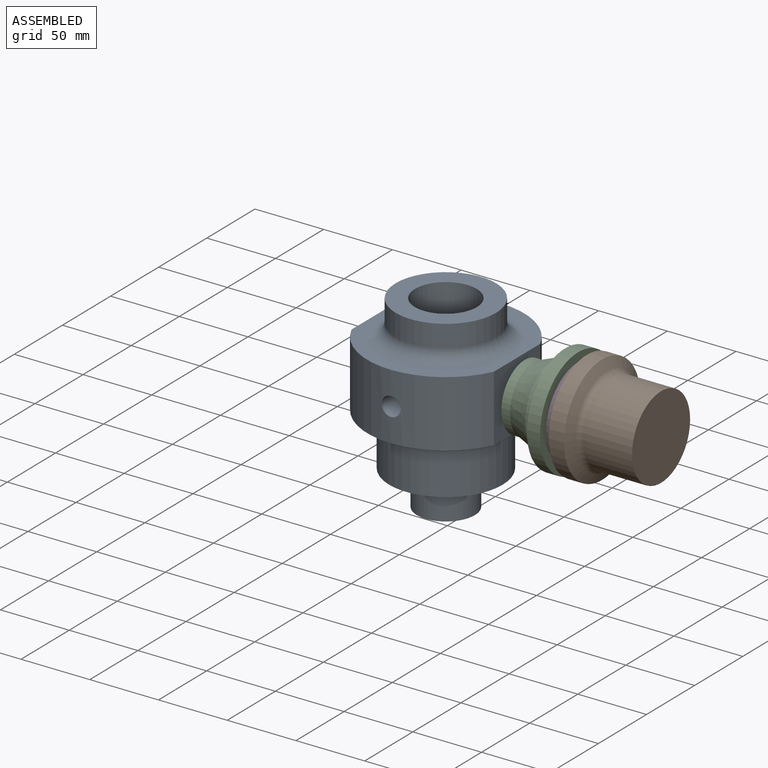
[diagram: assembled view]
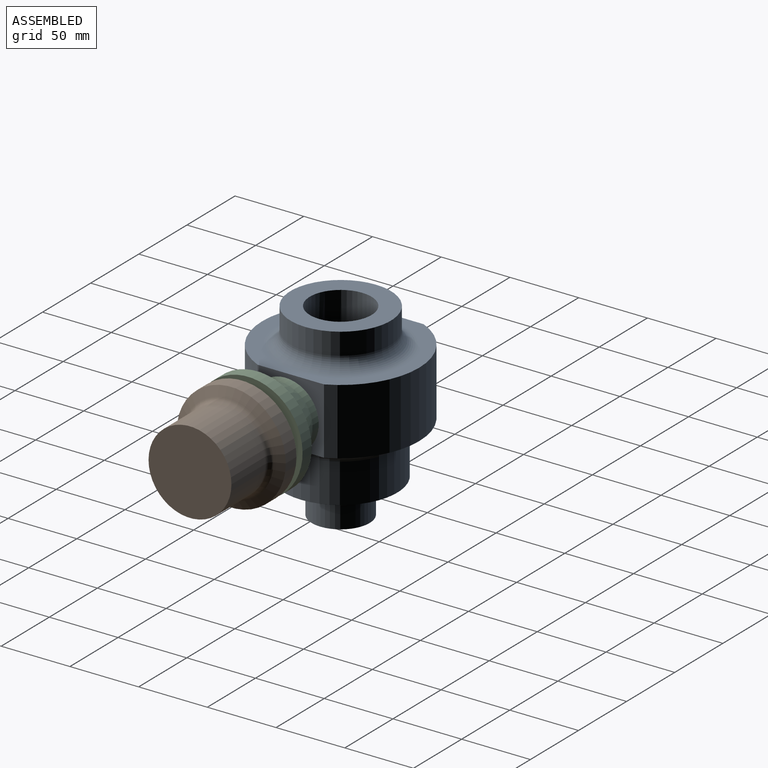
[diagram: assembled view, second angle]
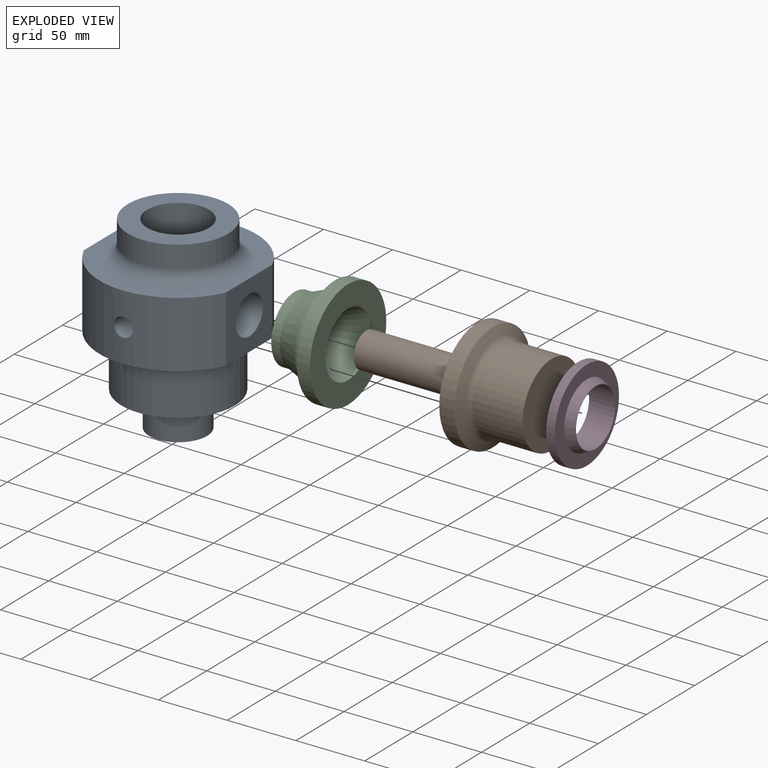
[diagram: exploded view]
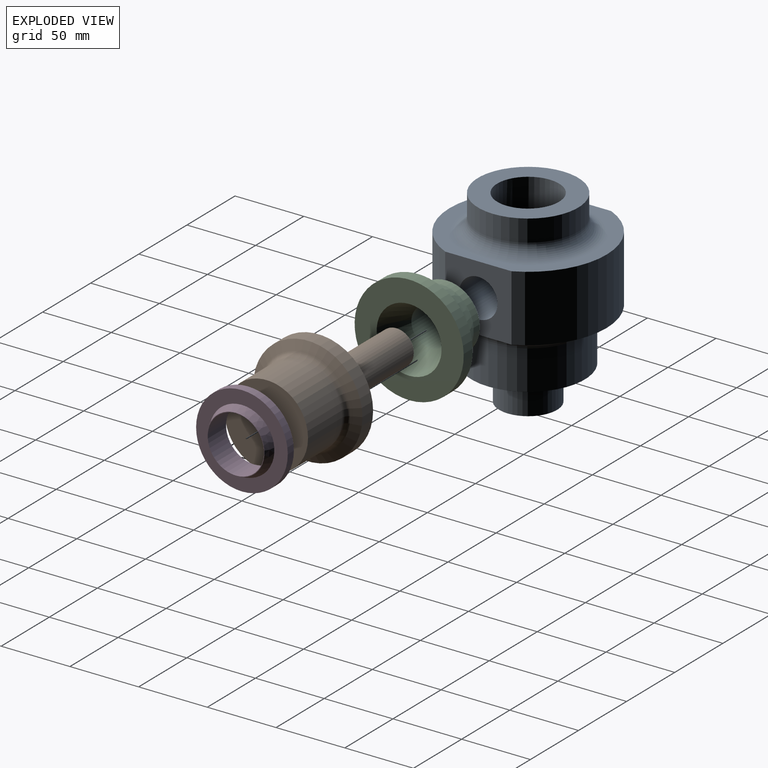
[diagram: exploded view, second angle]
ASSEMBLY  parts=4 mates=5
PART A: 21 faces, bbox 124.6x124.6x137.2 mm
  f0: cylinder r=22.49mm len=63.5mm, axis (0,0,-1), area 7528.5mm2, adj f5,f6,f17,f19,f20
  f1: cylinder r=57.15mm len=103.61mm, axis (0,0,-1), area 6112.4mm2, adj f2,f3,f16,f18,f20
  f2: plane 114.3x103.61mm, normal (0,0,1), area 3255.2mm2, adj f1,f4,f8,f16,f18
  f3: plane 114.3x103.61mm, normal (0,0,-1), area 1806.3mm2, adj f1,f4,f9,f16,f18
  f4: cylinder r=57.15mm len=103.61mm, axis (0,0,-1), area 6260.2mm2, adj f2,f3,f16,f18
  f5: cone r=22.49mm half-angle=15deg, axis (0,0,1), area 4568.7mm2, adj f0,f15
  f6: plane 73.03x73.03mm, normal (0,0,1), area 2599mm2, adj f0,f7
  f7: cylinder r=36.51mm len=73.03mm, axis (0,0,-1), area 3642mm2, adj f6,f8
  f8: torus R=46.04mm, axis (0,0,-1), area 3757.8mm2, adj f2,f7
  f9: torus R=50.8mm, axis (0,0,-1), area 4205.6mm2, adj f3,f10
  f10: cylinder r=41.27mm len=82.55mm, axis (0,0,-1), area 7410.6mm2, adj f9,f11
  f11: plane 82.55x82.55mm, normal (0,0,-1), area 2409.1mm2, adj f10,f12
  f12: torus R=30.61mm, axis (0,0,-1), area 2307.3mm2, adj f11,f13
  f13: cylinder r=21.08mm len=42.16mm, axis (0,0,-1), area 2102.8mm2, adj f12,f14
  f14: plane 42.16x42.16mm, normal (0,0,-1), area 989.5mm2, adj f13,f15
  f15: cylinder r=11.38mm len=32.19mm, axis (0,0,-1), area 2301.3mm2, adj f5,f14
  f16: plane 48.26x48.26mm, normal (-1,0,0), area 1715.9mm2, adj f1,f2,f3,f4,f17
  f17: cylinder r=13.97mm len=34.18mm, axis (-1,0,0), area 2780.1mm2, adj f0,f16
  f18: plane 48.26x48.26mm, normal (1,0,0), area 1715.9mm2, adj f1,f2,f3,f4,f19
  f19: cylinder r=13.97mm len=34.18mm, axis (1,0,0), area 2780mm2, adj f0,f18
  f20: cylinder r=6.86mm len=35.73mm, axis (0,1,0), area 1507.5mm2, adj f0,f1
PART B: 16 faces, bbox 79.4x79.4x134.9 mm
  f0: plane 60.33x60.33mm, normal (0,0,-1), area 2858.1mm2, adj f1
  f1: cylinder r=30.16mm len=60.33mm, axis (0,0,-1), area 6708.8mm2, adj f0,f2
  f2: torus R=34.92mm, axis (0,0,-1), area 1056.5mm2, adj f1,f3
  f3: cone r=39.69mm half-angle=65deg, axis (0,0,1), area 1705mm2, adj f2,f4
  f4: cylinder r=39.69mm len=79.38mm, axis (0,0,-1), area 2767.9mm2, adj f3,f5
  f5: plane 79.38x79.38mm, normal (0,0,1), area 3195.3mm2, adj f4,f6
  f6: cone r=16.03mm half-angle=23.5deg, axis (0,0,1), area 2373.5mm2, adj f5,f7
  f7: plane 32.07x32.07mm, normal (0,0,1), area 300.8mm2, adj f6,f9
  f8: cylinder r=11.05mm len=98.43mm, axis (0,0,-1), area 6833mm2, adj f10,f11
  f9: cylinder r=12.7mm len=98.43mm, axis (0,0,-1), area 7854mm2, adj f7,f10
  f10: plane 25.4x25.4mm, normal (0,0,1), area 123.2mm2, adj f8,f9
  f11: plane 22.1x22.1mm, normal (0,0,1), area 256.9mm2, adj f8,f13
  f12: cylinder r=5.46mm len=98.43mm, axis (0,0,-1), area 3377.2mm2, adj f14,f15
  f13: cylinder r=6.35mm len=98.43mm, axis (0,0,-1), area 3927mm2, adj f11,f14
  f14: plane 12.7x12.7mm, normal (0,0,1), area 33mm2, adj f12,f13
  f15: plane 10.92x10.92mm, normal (0,0,1), area 93.7mm2, adj f12
PART C: 12 faces, bbox 79.4x79.4x44.5 mm
  f0: torus R=34.92mm, axis (0,0,-1), area 1499.1mm2, adj f1,f11
  f1: cylinder r=30.16mm len=60.33mm, axis (0,0,-1), area 300.9mm2, adj f0,f2
  f2: cone r=30.16mm half-angle=21.6deg, axis (0,0,-1), area 2793.1mm2, adj f1,f3
  f3: cylinder r=24.13mm len=48.26mm, axis (0,0,-1), area 962.7mm2, adj f2,f4
  f4: cone r=24.13mm half-angle=60deg, axis (0,0,-1), area 1324.9mm2, adj f3,f5
  f5: plane 29.46x29.46mm, normal (0,0,1), area 68.7mm2, adj f4,f6
  f6: cylinder r=13.97mm len=27.94mm, axis (0,0,-1), area 1950.8mm2, adj f5,f7
  f7: cone r=13.97mm half-angle=23.5deg, axis (0,0,-1), area 2861.6mm2, adj f6,f8
  f8: plane 79.38x79.38mm, normal (0,0,-1), area 3195.3mm2, adj f7,f9
  f9: cylinder r=39.69mm len=79.38mm, axis (0,0,-1), area 2372mm2, adj f8,f10
  f10: cone r=39.69mm half-angle=65deg, axis (0,0,-1), area 896.5mm2, adj f9,f11
  f11: plane 72.57x72.57mm, normal (0,0,1), area 303.8mm2, adj f0,f10
PART D: 8 faces, bbox 66.7x66.7x19.1 mm
  f0: plane 41.73x41.73mm, normal (0,0,1), area 54.2mm2, adj f1,f7
  f1: cone r=20.86mm half-angle=23.5deg, axis (0,0,-1), area 967.5mm2, adj f0,f2
  f2: plane 66.68x66.68mm, normal (0,0,1), area 1738.5mm2, adj f1,f3
  f3: cylinder r=33.34mm len=66.68mm, axis (0,0,1), area 1330.1mm2, adj f2,f4
  f4: plane 66.68x66.68mm, normal (0,0,-1), area 1738.5mm2, adj f3,f5
  f5: cone r=20.86mm half-angle=23.5deg, axis (0,0,1), area 967.5mm2, adj f4,f6
  f6: plane 41.73x41.73mm, normal (0,0,-1), area 54.2mm2, adj f5,f7
  f7: cylinder r=20.45mm len=40.89mm, axis (0,0,1), area 2447.4mm2, adj f0,f6
PLACE A t=(-60.99,-35.72,24.82)mm
PLACE B rot(axis=(0.58,-0.58,-0.58),120deg) t=(35.27,-35.72,112.45)mm
PLACE C rot(axis=(0,-1,0),90deg) t=(35.27,-35.72,112.45)mm
PLACE D rot(axis=(0,-1,0),90deg) t=(35.27,-35.72,112.45)mm
MATE fastened C.f0 <-> A.f17  axis (-1,0,0) through (-9.18,-35.72,112.45)mm
MATE cylindrical B.f1 <-> D.f1  axis (1,0,0) through (77.9,-35.72,112.45)mm
MATE planar D.f1 <-> C.f0  axis (-1,0,0) through (35.27,-35.72,112.45)mm
MATE cylindrical D.f1 <-> C.f0  axis (-1,0,0) through (38.45,-35.72,112.45)mm
MATE planar B.f1 <-> D.f1  axis (-1,0,0) through (41.62,-35.72,112.45)mm
